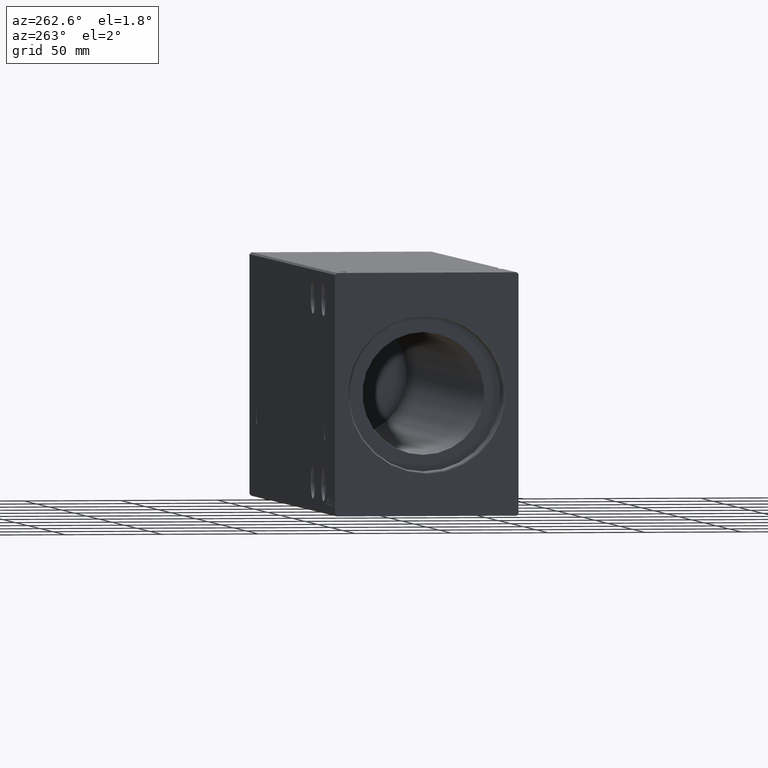
[diagram: clean part render]
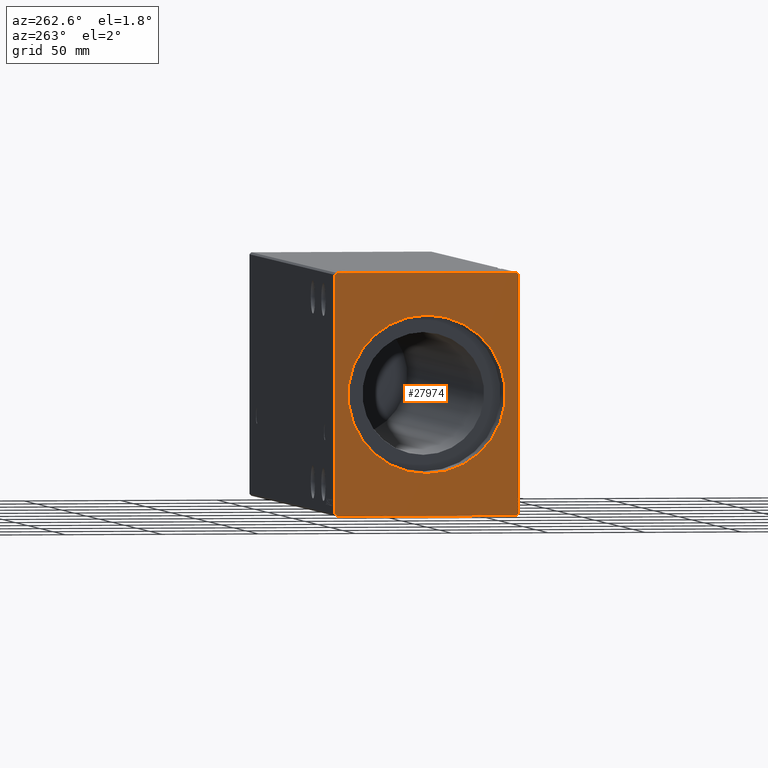
[diagram: same view with one face highlighted and labeled with its STEP entity id]
A machine part, auxiliary view. The second image highlights one B-rep face of the part: STEP entity #27974.
In plain terms, the highlighted planar face has unit normal (1, 0, 0).
Its self-contained STEP definition (entity closure, byte-faithful):
#133 = EDGE_CURVE ( 'NONE', #15885, #13358, #435, .T. ) ;
#435 = LINE ( 'NONE', #26343, #19059 ) ;
#660 = CARTESIAN_POINT ( 'NONE',  ( 0.000000000000000000, 46.50000000000000000, -62.50000000000000000 ) ) ;
#1603 = DIRECTION ( 'NONE',  ( 0.000000000000000000, 1.692413147294445970E-16, -1.000000000000000000 ) ) ;
#1924 = VECTOR ( 'NONE', #31999, 1000.000000000000114 ) ;
#3418 = LINE ( 'NONE', #660, #36240 ) ;
#3853 = EDGE_LOOP ( 'NONE', ( #5995, #9399 ) ) ;
#4085 = FACE_OUTER_BOUND ( 'NONE', #20096, .T. ) ;
#4710 = EDGE_CURVE ( 'NONE', #16176, #15885, #12906, .T. ) ;
#4891 = VERTEX_POINT ( 'NONE', #25611 ) ;
#5995 = ORIENTED_EDGE ( 'NONE', *, *, #16988, .T. ) ;
#6845 = EDGE_CURVE ( 'NONE', #4891, #10235, #3418, .T. ) ;
#6945 = CARTESIAN_POINT ( 'NONE',  ( 0.000000000000000000, 4.984312472529715481E-15, -40.69999999999990337 ) ) ;
#7004 = VECTOR ( 'NONE', #20126, 1000.000000000000000 ) ;
#7767 = CARTESIAN_POINT ( 'NONE',  ( 0.000000000000000000, -47.50000000000001421, 61.49999999999997868 ) ) ;
#8145 = LINE ( 'NONE', #17496, #39859 ) ;
#8229 = ORIENTED_EDGE ( 'NONE', *, *, #17883, .F. ) ;
#8663 = CARTESIAN_POINT ( 'NONE',  ( 0.000000000000000000, 0.000000000000000000, 0.000000000000000000 ) ) ;
#9399 = ORIENTED_EDGE ( 'NONE', *, *, #12230, .T. ) ;
#10180 = DIRECTION ( 'NONE',  ( 0.000000000000000000, 1.000000000000000000, 1.492235248152092278E-16 ) ) ;
#10235 = VERTEX_POINT ( 'NONE', #21964 ) ;
#10827 = DIRECTION ( 'NONE',  ( 0.000000000000000000, 0.7071067811865574537, 0.7071067811865376918 ) ) ;
#11290 = VECTOR ( 'NONE', #10180, 1000.000000000000000 ) ;
#12230 = EDGE_CURVE ( 'NONE', #35018, #16942, #38998, .T. ) ;
#12247 = ORIENTED_EDGE ( 'NONE', *, *, #6845, .F. ) ;
#12473 = CARTESIAN_POINT ( 'NONE',  ( 0.000000000000000000, 47.50000000000000000, 61.49999999999998579 ) ) ;
#12906 = LINE ( 'NONE', #26081, #7004 ) ;
#12921 = VERTEX_POINT ( 'NONE', #40975 ) ;
#12954 = DIRECTION ( 'NONE',  ( 0.000000000000000000, -0.7071067811865474617, -0.7071067811865474617 ) ) ;
#13232 = VERTEX_POINT ( 'NONE', #22594 ) ;
#13358 = VERTEX_POINT ( 'NONE', #33230 ) ;
#13824 = EDGE_CURVE ( 'NONE', #13358, #22543, #33702, .T. ) ;
#14688 = ORIENTED_EDGE ( 'NONE', *, *, #23564, .F. ) ;
#14813 = CARTESIAN_POINT ( 'NONE',  ( 0.000000000000000000, 0.000000000000000000, 40.69999999999990337 ) ) ;
#15232 = DIRECTION ( 'NONE',  ( 1.000000000000000000, 0.000000000000000000, 0.000000000000000000 ) ) ;
#15885 = VERTEX_POINT ( 'NONE', #25472 ) ;
#16176 = VERTEX_POINT ( 'NONE', #34385 ) ;
#16415 = FACE_BOUND ( 'NONE', #3853, .T. ) ;
#16942 = VERTEX_POINT ( 'NONE', #14813 ) ;
#16988 = EDGE_CURVE ( 'NONE', #16942, #35018, #37724, .T. ) ;
#17271 = AXIS2_PLACEMENT_3D ( 'NONE', #19419, #29415, #36209 ) ;
#17496 = CARTESIAN_POINT ( 'NONE',  ( 0.000000000000000000, 47.50000000000001421, -61.50000000000001421 ) ) ;
#17583 = ORIENTED_EDGE ( 'NONE', *, *, #17632, .F. ) ;
#17632 = EDGE_CURVE ( 'NONE', #12921, #4891, #33350, .T. ) ;
#17883 = EDGE_CURVE ( 'NONE', #13232, #16176, #28637, .T. ) ;
#18046 = CARTESIAN_POINT ( 'NONE',  ( 0.000000000000000000, -47.49999999999999289, -61.50000000000001421 ) ) ;
#19059 = VECTOR ( 'NONE', #12954, 1000.000000000000114 ) ;
#19392 = AXIS2_PLACEMENT_3D ( 'NONE', #8663, #15232, #21616 ) ;
#19419 = CARTESIAN_POINT ( 'NONE',  ( 0.000000000000000000, 0.000000000000000000, 0.000000000000000000 ) ) ;
#20020 = CARTESIAN_POINT ( 'NONE',  ( 0.000000000000000000, 0.000000000000000000, 0.000000000000000000 ) ) ;
#20096 = EDGE_LOOP ( 'NONE', ( #8229, #35925, #12247, #17583, #14688, #33970, #37235, #31160 ) ) ;
#20126 = DIRECTION ( 'NONE',  ( 0.000000000000000000, -1.000000000000000000, -7.461176240760460157E-17 ) ) ;
#20297 = EDGE_CURVE ( 'NONE', #10235, #13232, #8145, .T. ) ;
#21616 = DIRECTION ( 'NONE',  ( 0.000000000000000000, 0.000000000000000000, -1.000000000000000000 ) ) ;
#21964 = CARTESIAN_POINT ( 'NONE',  ( 0.000000000000000000, 47.50000000000001421, -61.50000000000001421 ) ) ;
#22543 = VERTEX_POINT ( 'NONE', #18046 ) ;
#22594 = CARTESIAN_POINT ( 'NONE',  ( 0.000000000000000000, 47.50000000000000000, 61.49999999999998579 ) ) ;
#22618 = CARTESIAN_POINT ( 'NONE',  ( 0.000000000000000000, -47.49999999999999289, -61.50000000000001421 ) ) ;
#23564 = EDGE_CURVE ( 'NONE', #22543, #12921, #31787, .T. ) ;
#25438 = DIRECTION ( 'NONE',  ( 0.000000000000000000, -0.7071067811865474617, 0.7071067811865474617 ) ) ;
#25472 = CARTESIAN_POINT ( 'NONE',  ( 0.000000000000000000, -46.50000000000001421, 62.49999999999997868 ) ) ;
#25611 = CARTESIAN_POINT ( 'NONE',  ( 0.000000000000000000, 46.50000000000000000, -62.50000000000000000 ) ) ;
#26081 = CARTESIAN_POINT ( 'NONE',  ( 0.000000000000000000, 46.50000000000000000, 62.49999999999998579 ) ) ;
#26326 = CARTESIAN_POINT ( 'NONE',  ( 0.000000000000000000, -46.50000000000000000, -62.50000000000001421 ) ) ;
#26343 = CARTESIAN_POINT ( 'NONE',  ( 0.000000000000000000, -46.50000000000001421, 62.49999999999997868 ) ) ;
#27974 = ADVANCED_FACE ( 'NONE', ( #16415, #4085 ), #30020, .F. ) ;
#28637 = LINE ( 'NONE', #12473, #34367 ) ;
#29176 = DIRECTION ( 'NONE',  ( 1.000000000000000000, 0.000000000000000000, 0.000000000000000000 ) ) ;
#29415 = DIRECTION ( 'NONE',  ( 1.000000000000000000, 0.000000000000000000, 0.000000000000000000 ) ) ;
#30020 = PLANE ( 'NONE',  #35329 ) ;
#31160 = ORIENTED_EDGE ( 'NONE', *, *, #4710, .F. ) ;
#31787 = LINE ( 'NONE', #22618, #1924 ) ;
#31999 = DIRECTION ( 'NONE',  ( 0.000000000000000000, 0.7071067811865451302, -0.7071067811865500152 ) ) ;
#32993 = DIRECTION ( 'NONE',  ( 0.000000000000000000, 0.000000000000000000, -1.000000000000000000 ) ) ;
#33230 = CARTESIAN_POINT ( 'NONE',  ( 0.000000000000000000, -47.50000000000001421, 61.49999999999997868 ) ) ;
#33350 = LINE ( 'NONE', #26326, #11290 ) ;
#33702 = LINE ( 'NONE', #7767, #36999 ) ;
#33970 = ORIENTED_EDGE ( 'NONE', *, *, #13824, .F. ) ;
#34367 = VECTOR ( 'NONE', #25438, 1000.000000000000114 ) ;
#34385 = CARTESIAN_POINT ( 'NONE',  ( 0.000000000000000000, 46.50000000000000000, 62.49999999999998579 ) ) ;
#35018 = VERTEX_POINT ( 'NONE', #6945 ) ;
#35329 = AXIS2_PLACEMENT_3D ( 'NONE', #20020, #29176, #32993 ) ;
#35925 = ORIENTED_EDGE ( 'NONE', *, *, #20297, .F. ) ;
#36054 = DIRECTION ( 'NONE',  ( 0.000000000000000000, -1.128275431529630729E-16, 1.000000000000000000 ) ) ;
#36209 = DIRECTION ( 'NONE',  ( 0.000000000000000000, 0.000000000000000000, -1.000000000000000000 ) ) ;
#36240 = VECTOR ( 'NONE', #10827, 999.9999999999998863 ) ;
#36999 = VECTOR ( 'NONE', #1603, 1000.000000000000000 ) ;
#37235 = ORIENTED_EDGE ( 'NONE', *, *, #133, .F. ) ;
#37724 = CIRCLE ( 'NONE', #19392, 40.69999999999990337 ) ;
#38998 = CIRCLE ( 'NONE', #17271, 40.69999999999990337 ) ;
#39859 = VECTOR ( 'NONE', #36054, 1000.000000000000000 ) ;
#40975 = CARTESIAN_POINT ( 'NONE',  ( 0.000000000000000000, -46.50000000000000000, -62.50000000000001421 ) ) ;